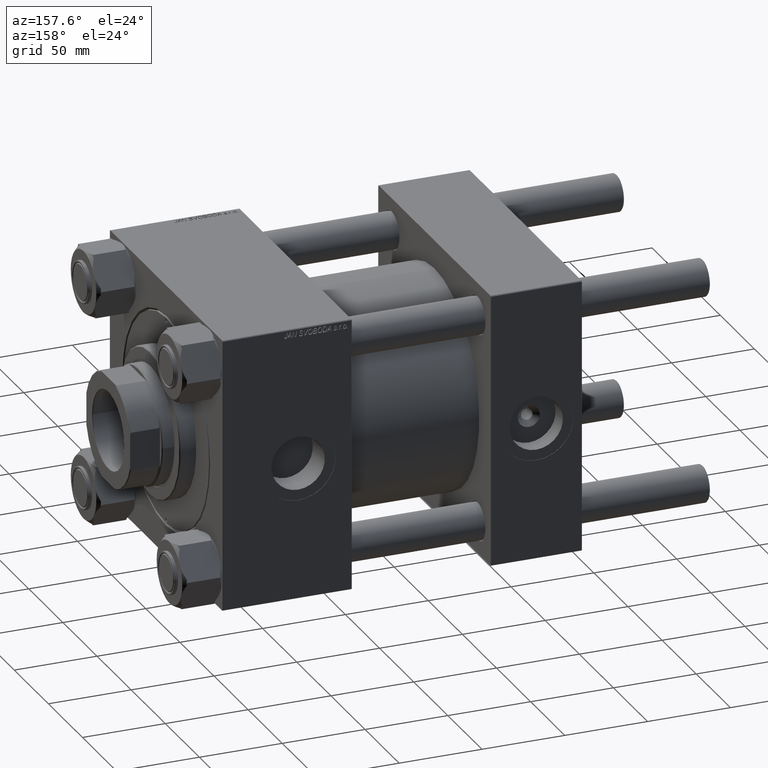
[diagram: clean part render]
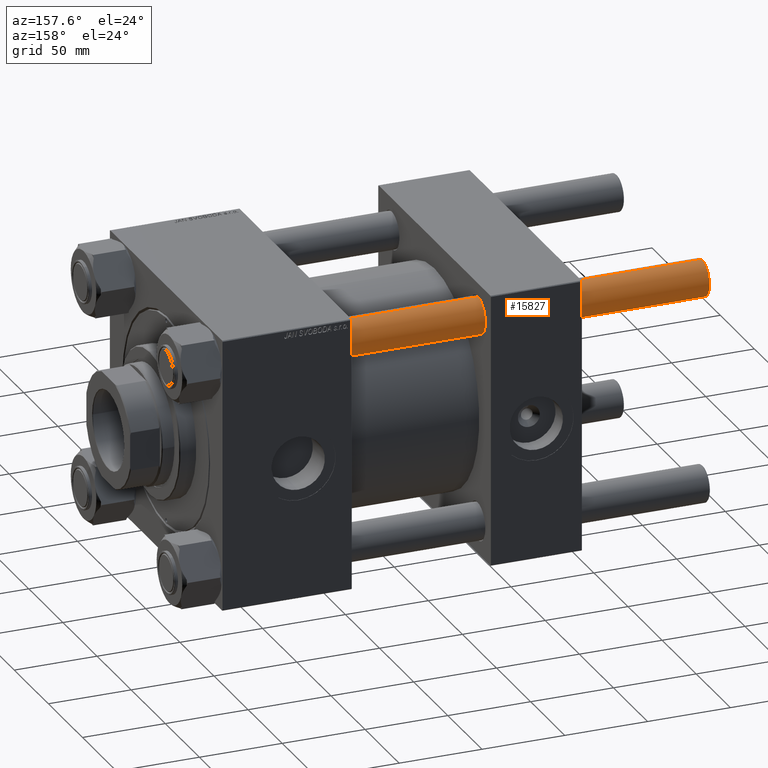
[diagram: same view with one face highlighted and labeled with its STEP entity id]
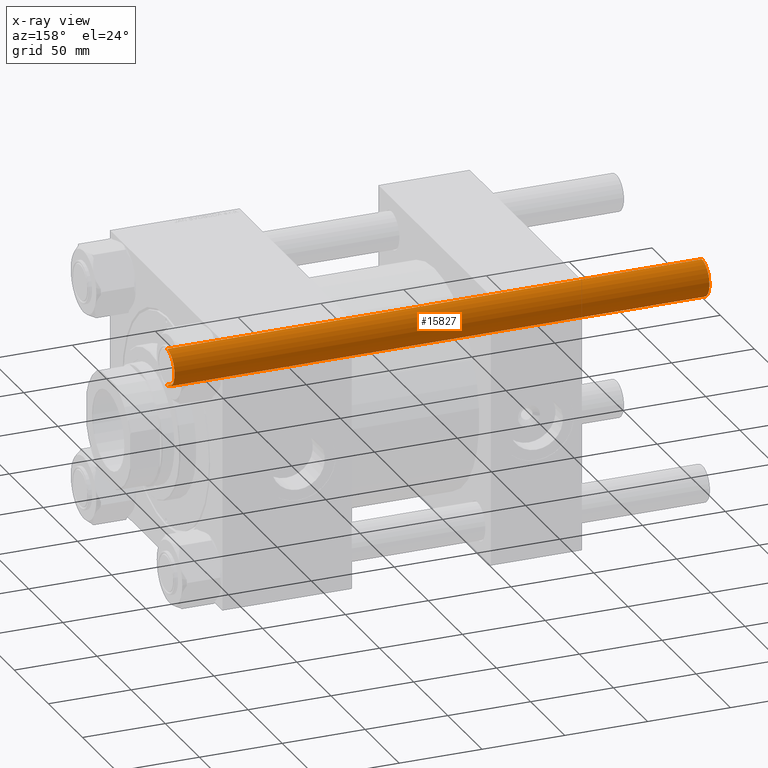
[diagram: x-ray of the same camera — body ghosted, the highlighted face saturated]
A machine part, auxiliary view. The second image highlights one B-rep face of the part: STEP entity #15827.
The next image is the same camera in x-ray: the body ghosted, the highlighted face saturated — about 0% of this face is hidden behind the body in this view.
In plain terms, the highlighted cylindrical surface (edge-blend (fillet) strip) has radius 11 mm, axis along (-1, -0, -0).
Its self-contained STEP definition (entity closure, byte-faithful):
#1681 = AXIS2_PLACEMENT_3D ( 'NONE', #40344, #13055, #28594 ) ;
#2412 = DIRECTION ( 'NONE',  ( 1.000000000000000000, 0.000000000000000000, 0.000000000000000000 ) ) ;
#3769 = EDGE_CURVE ( 'NONE', #13699, #28402, #35088, .T. ) ;
#5753 = CARTESIAN_POINT ( 'NONE',  ( 0.000000000000000000, 0.000000000000000000, 323.5000000000000000 ) ) ;
#6535 = CARTESIAN_POINT ( 'NONE',  ( 11.00000000000000000, 1.347111479062088405E-15, 0.5000000000000559552 ) ) ;
#6659 = EDGE_CURVE ( 'NONE', #24788, #18661, #49838, .T. ) ;
#11676 = CARTESIAN_POINT ( 'NONE',  ( 11.00000000000000000, 1.347111479062088405E-15, 324.0000000000000000 ) ) ;
#13055 = DIRECTION ( 'NONE',  ( -0.000000000000000000, -0.000000000000000000, 1.000000000000000000 ) ) ;
#13397 = CARTESIAN_POINT ( 'NONE',  ( -11.00000000000000000, 0.000000000000000000, 324.0000000000000000 ) ) ;
#13699 = VERTEX_POINT ( 'NONE', #6535 ) ;
#15827 = ADVANCED_FACE ( 'NONE', ( #29147 ), #33496, .T. ) ;
#16624 = EDGE_LOOP ( 'NONE', ( #40724, #50038, #19780, #31364 ) ) ;
#18661 = VERTEX_POINT ( 'NONE', #31136 ) ;
#19780 = ORIENTED_EDGE ( 'NONE', *, *, #3769, .T. ) ;
#21329 = DIRECTION ( 'NONE',  ( 0.000000000000000000, 0.000000000000000000, -1.000000000000000000 ) ) ;
#21775 = DIRECTION ( 'NONE',  ( -0.000000000000000000, -0.000000000000000000, -1.000000000000000000 ) ) ;
#22709 = CARTESIAN_POINT ( 'NONE',  ( -11.00000000000000000, 0.000000000000000000, 0.5000000000000559552 ) ) ;
#23540 = VECTOR ( 'NONE', #42797, 1000.000000000000000 ) ;
#23682 = VECTOR ( 'NONE', #32272, 1000.000000000000000 ) ;
#24788 = VERTEX_POINT ( 'NONE', #30921 ) ;
#25120 = LINE ( 'NONE', #13397, #23682 ) ;
#27848 = AXIS2_PLACEMENT_3D ( 'NONE', #5753, #21329, #2412 ) ;
#28402 = VERTEX_POINT ( 'NONE', #22709 ) ;
#28594 = DIRECTION ( 'NONE',  ( 1.000000000000000000, 0.000000000000000000, 0.000000000000000000 ) ) ;
#29147 = FACE_OUTER_BOUND ( 'NONE', #16624, .T. ) ;
#29618 = AXIS2_PLACEMENT_3D ( 'NONE', #44474, #21775, #44725 ) ;
#30921 = CARTESIAN_POINT ( 'NONE',  ( -11.00000000000000000, 0.000000000000000000, 323.5000000000000000 ) ) ;
#31136 = CARTESIAN_POINT ( 'NONE',  ( 11.00000000000000000, 1.347111479062088405E-15, 323.5000000000000000 ) ) ;
#31364 = ORIENTED_EDGE ( 'NONE', *, *, #49408, .F. ) ;
#32272 = DIRECTION ( 'NONE',  ( -0.000000000000000000, -0.000000000000000000, -1.000000000000000000 ) ) ;
#33496 = CYLINDRICAL_SURFACE ( 'NONE', #29618, 11.00000000000000000 ) ;
#35088 = CIRCLE ( 'NONE', #1681, 11.00000000000000000 ) ;
#38493 = EDGE_CURVE ( 'NONE', #18661, #13699, #38957, .T. ) ;
#38957 = LINE ( 'NONE', #11676, #23540 ) ;
#40344 = CARTESIAN_POINT ( 'NONE',  ( 0.000000000000000000, 0.000000000000000000, 0.5000000000000559552 ) ) ;
#40724 = ORIENTED_EDGE ( 'NONE', *, *, #6659, .T. ) ;
#42797 = DIRECTION ( 'NONE',  ( -0.000000000000000000, -0.000000000000000000, -1.000000000000000000 ) ) ;
#44474 = CARTESIAN_POINT ( 'NONE',  ( 0.000000000000000000, 0.000000000000000000, 324.0000000000000000 ) ) ;
#44725 = DIRECTION ( 'NONE',  ( -1.000000000000000000, 0.000000000000000000, 0.000000000000000000 ) ) ;
#49408 = EDGE_CURVE ( 'NONE', #24788, #28402, #25120, .T. ) ;
#49838 = CIRCLE ( 'NONE', #27848, 11.00000000000000000 ) ;
#50038 = ORIENTED_EDGE ( 'NONE', *, *, #38493, .T. ) ;